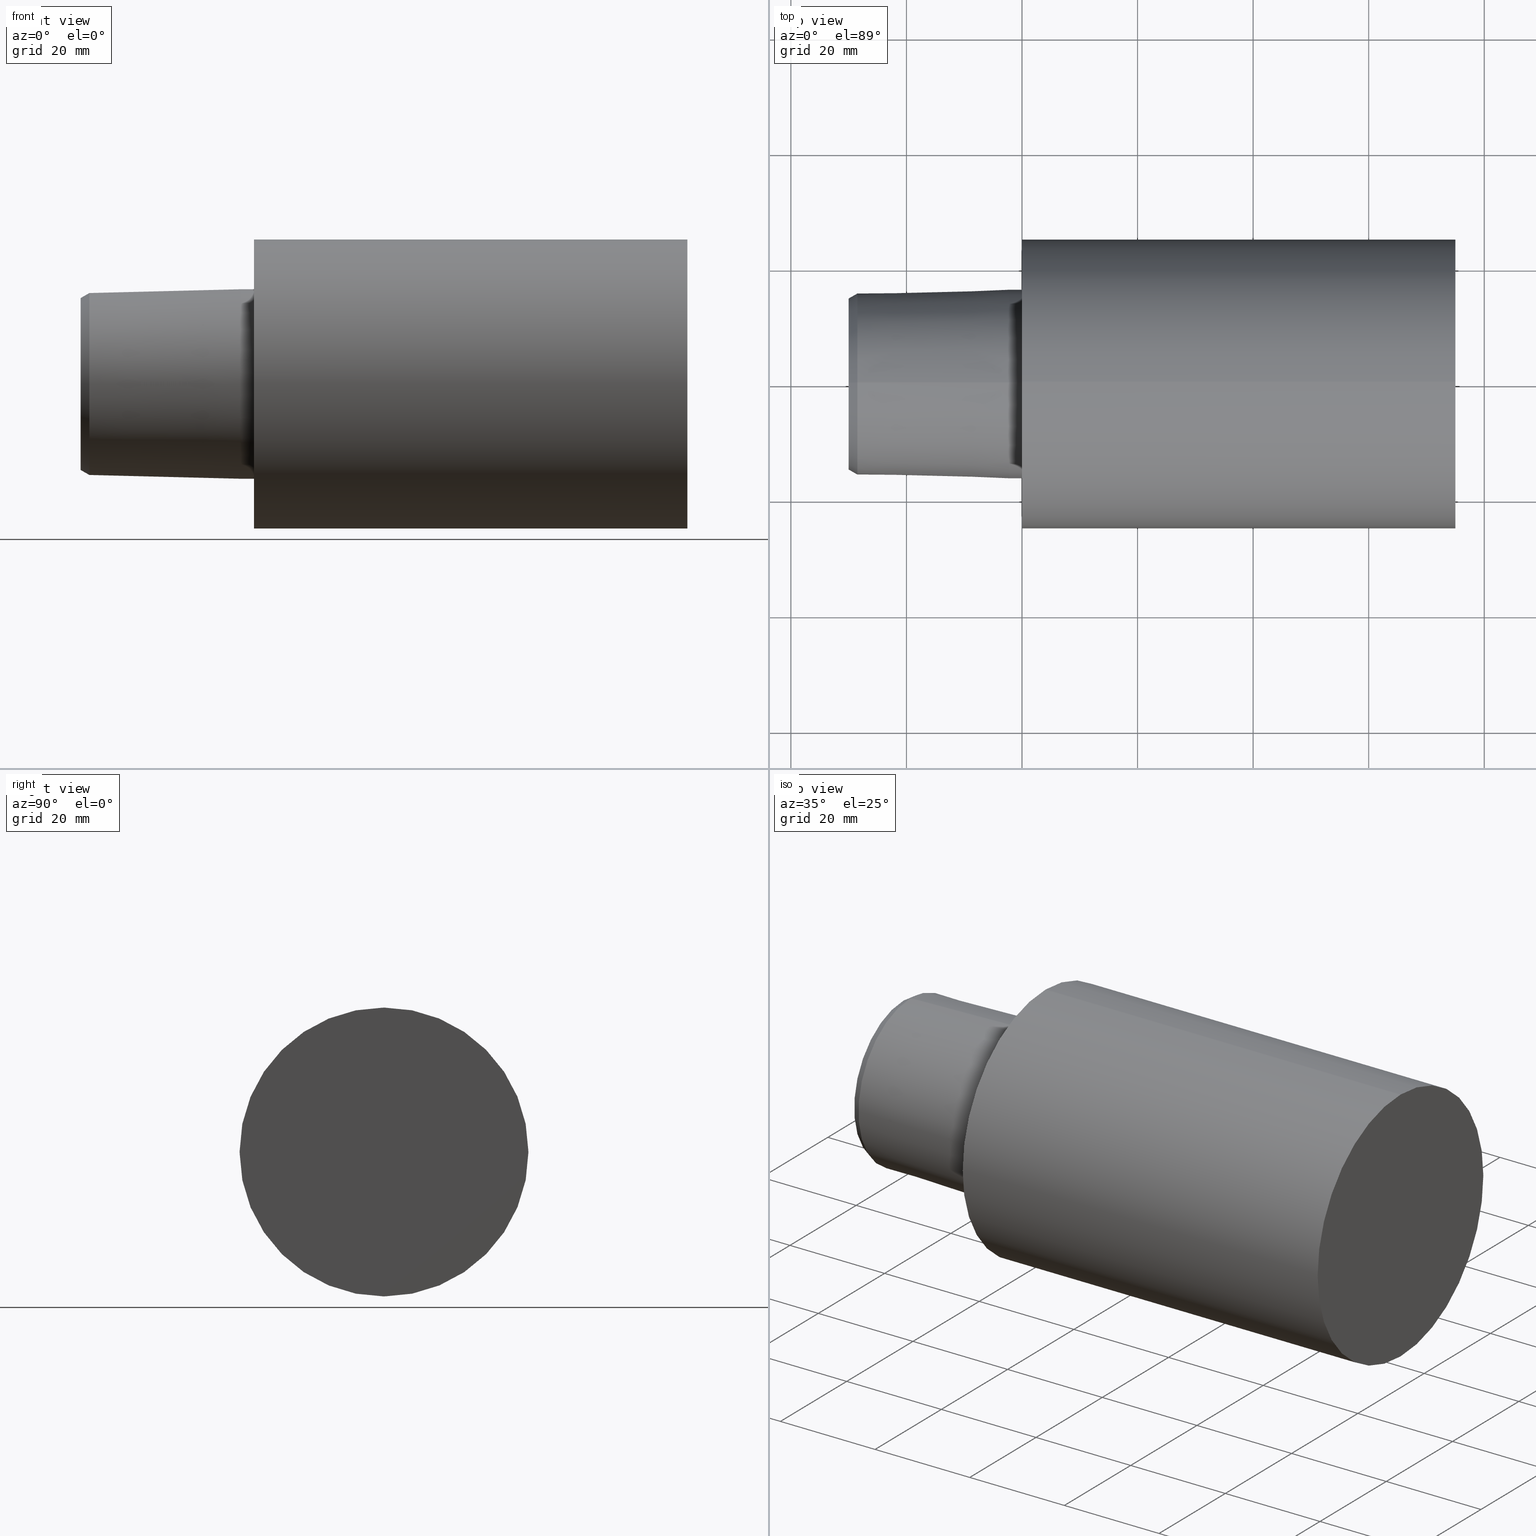
[diagram: canonical four-view strip — front | top / right | iso, engineering-drawing reading convention]
A machine part, canonical four-view strip (front | top / right | iso — engineering-drawing reading convention). The complete STEP part file that produces these views, byte-faithful:
ISO-10303-21;
HEADER;
FILE_DESCRIPTION (( 'STEP AP203' ),
    '1' );
FILE_NAME ('C5-S50-75.stp',
    '2022-03-11T15:29:42',
    ( '' ),
    ( '' ),
    'SwSTEP 2.0',
    'SolidWorks 2021',
    '' );
FILE_SCHEMA (( 'CONFIG_CONTROL_DESIGN' ));
ENDSEC;

DATA;
#1 = DIRECTION ( 'NONE',  ( 1.000000000000000000, 0.000000000000000000, 0.000000000000000000 ) ) ;
#2 = CC_DESIGN_DATE_AND_TIME_ASSIGNMENT ( #61, #10, ( #323 ) ) ;
#3 = PLANE ( 'NONE',  #201 ) ;
#4 = CARTESIAN_POINT ( 'NONE',  ( -28.49999997092999848, 0.000000000000000000, -15.74244386394270734 ) ) ;
#5 = EDGE_CURVE ( 'NONE', #42, #72, #73, .T. ) ;
#6 = ORIENTED_EDGE ( 'NONE', *, *, #352, .T. ) ;
#7 = DIRECTION ( 'NONE',  ( 1.000000000000000000, 0.000000000000000000, 0.000000000000000000 ) ) ;
#8 = AXIS2_PLACEMENT_3D ( 'NONE', #297, #261, #127 ) ;
#9 = ORIENTED_EDGE ( 'NONE', *, *, #333, .F. ) ;
#10 = DATE_TIME_ROLE ( 'creation_date' ) ;
#11 = EDGE_CURVE ( 'NONE', #220, #199, #114, .T. ) ;
#12 = ORIENTED_EDGE ( 'NONE', *, *, #53, .F. ) ;
#13 = CALENDAR_DATE ( 2022, 11, 3 ) ;
#14 = ORIENTED_EDGE ( 'NONE', *, *, #157, .F. ) ;
#15 = APPROVAL_ROLE ( '' ) ;
#16 = EDGE_LOOP ( 'NONE', ( #37, #183 ) ) ;
#17 = AXIS2_PLACEMENT_3D ( 'NONE', #57, #248, #218 ) ;
#18 = PLANE ( 'NONE',  #273 ) ;
#19 = EDGE_CURVE ( 'NONE', #42, #262, #158, .T. ) ;
#20 = ORIENTED_EDGE ( 'NONE', *, *, #135, .T. ) ;
#21 = FACE_BOUND ( 'NONE', #174, .T. ) ;
#22 = DIRECTION ( 'NONE',  ( 0.000000000000000000, 0.000000000000000000, -1.000000000000000000 ) ) ;
#23 = ADVANCED_FACE ( 'NONE', ( #134 ), #140, .T. ) ;
#24 = DIRECTION ( 'NONE',  ( 0.8660254037844387076, 0.000000000000000000, -0.4999999999999998890 ) ) ;
#25 = DIRECTION ( 'NONE',  ( 0.000000000000000000, 0.000000000000000000, -1.000000000000000000 ) ) ;
#26 = AXIS2_PLACEMENT_3D ( 'NONE', #46, #207, #291 ) ;
#27 = CARTESIAN_POINT ( 'NONE',  ( 74.99999992349999900, 0.000000000000000000, -24.99999997449999967 ) ) ;
#28 = DIRECTION ( 'NONE',  ( 1.000000000000000000, 0.000000000000000000, 0.000000000000000000 ) ) ;
#29 = DIRECTION ( 'NONE',  ( 1.000000000000000000, 0.000000000000000000, 0.000000000000000000 ) ) ;
#30 = VECTOR ( 'NONE', #129, 1000.000000000000000 ) ;
#31 = DIRECTION ( 'NONE',  ( 0.000000000000000000, 0.000000000000000000, -1.000000000000000000 ) ) ;
#32 = ADVANCED_FACE ( 'NONE', ( #265 ), #18, .T. ) ;
#33 = COORDINATED_UNIVERSAL_TIME_OFFSET ( 6, 0, .BEHIND. ) ;
#34 = VERTEX_POINT ( 'NONE', #353 ) ;
#35 = APPROVAL_DATE_TIME ( #60, #189 ) ;
#36 = AXIS2_PLACEMENT_3D ( 'NONE', #165, #244, #112 ) ;
#37 = ORIENTED_EDGE ( 'NONE', *, *, #254, .F. ) ;
#38 =( NAMED_UNIT ( * ) PLANE_ANGLE_UNIT ( ) SI_UNIT ( $, .RADIAN. ) );
#39 = APPROVAL ( #123, 'UNSPECIFIED' ) ;
#40 = EDGE_LOOP ( 'NONE', ( #96, #102, #154, #326 ) ) ;
#41 = PERSON_AND_ORGANIZATION ( #173, #115 ) ;
#42 = VERTEX_POINT ( 'NONE', #264 ) ;
#43 = CIRCLE ( 'NONE', #246, 24.99999997449999967 ) ;
#44 = AXIS2_PLACEMENT_3D ( 'NONE', #205, #347, #22 ) ;
#45 = DIRECTION ( 'NONE',  ( -1.000000000000000000, 0.000000000000000000, 0.000000000000000000 ) ) ;
#46 = CARTESIAN_POINT ( 'NONE',  ( -29.99999996776130118, 0.000000000000000000, 0.000000000000000000 ) ) ;
#47 = CC_DESIGN_DATE_AND_TIME_ASSIGNMENT ( #236, #101, ( #260 ) ) ;
#48 = DIRECTION ( 'NONE',  ( 0.000000000000000000, 0.000000000000000000, -1.000000000000000000 ) ) ;
#49 = CIRCLE ( 'NONE', #95, 15.74244386394270734 ) ;
#50 = DIRECTION ( 'NONE',  ( 0.000000000000000000, 0.000000000000000000, -1.000000000000000000 ) ) ;
#51 = DIRECTION ( 'NONE',  ( 1.000000000000000000, 0.000000000000000000, 0.000000000000000000 ) ) ;
#52 = CARTESIAN_POINT ( 'NONE',  ( -2.199937517756067606, 0.000000000000000000, 0.000000000000000000 ) ) ;
#53 = EDGE_CURVE ( 'NONE', #72, #287, #128, .T. ) ;
#54 = VECTOR ( 'NONE', #28, 1000.000000000000000 ) ;
#55 = LOCAL_TIME ( 9, 29, 42.00000000000000000, #232 ) ;
#56 = DIRECTION ( 'NONE',  ( 0.000000000000000000, 0.000000000000000000, -1.000000000000000000 ) ) ;
#57 = CARTESIAN_POINT ( 'NONE',  ( 0.000000000000000000, 0.000000000000000000, 0.000000000000000000 ) ) ;
#58 = DIRECTION ( 'NONE',  ( 1.000000000000000000, 0.000000000000000000, 0.000000000000000000 ) ) ;
#59 = ADVANCED_FACE ( 'NONE', ( #21, #293 ), #185, .T. ) ;
#60 = DATE_AND_TIME ( #13, #337 ) ;
#61 = DATE_AND_TIME ( #253, #131 ) ;
#62 =( LENGTH_UNIT ( ) NAMED_UNIT ( * ) SI_UNIT ( .MILLI., .METRE. ) );
#63 = ORIENTED_EDGE ( 'NONE', *, *, #258, .T. ) ;
#64 = PERSON_AND_ORGANIZATION_ROLE ( 'design_supplier' ) ;
#65 = AXIS2_PLACEMENT_3D ( 'NONE', #52, #271, #56 ) ;
#66 = ORIENTED_EDGE ( 'NONE', *, *, #328, .T. ) ;
#67 = PRODUCT ( 'C5-S50-75', 'C5-S50-75', '', ( #279 ) ) ;
#68 = APPROVAL_DATE_TIME ( #219, #39 ) ;
#69 = ORIENTED_EDGE ( 'NONE', *, *, #206, .F. ) ;
#70 = EDGE_CURVE ( 'NONE', #310, #34, #175, .T. ) ;
#71 = ORIENTED_EDGE ( 'NONE', *, *, #157, .T. ) ;
#72 = VERTEX_POINT ( 'NONE', #181 ) ;
#73 = CIRCLE ( 'NONE', #26, 14.87641846198772733 ) ;
#74 = SHAPE_DEFINITION_REPRESENTATION ( #294, #133 ) ;
#75 = CARTESIAN_POINT ( 'NONE',  ( 0.000000000000000000, 24.99999997449999967, 0.000000000000000000 ) ) ;
#76 = DIRECTION ( 'NONE',  ( 1.000000000000000000, 0.000000000000000000, 0.000000000000000000 ) ) ;
#77 = CARTESIAN_POINT ( 'NONE',  ( 74.99999992349999900, 0.000000000000000000, 0.000000000000000000 ) ) ;
#78 = UNCERTAINTY_MEASURE_WITH_UNIT (LENGTH_MEASURE( 1.000000000000000082E-05 ), #62, 'distance_accuracy_value', 'NONE');
#79 = DIRECTION ( 'NONE',  ( -1.000000000000000000, 0.000000000000000000, 0.000000000000000000 ) ) ;
#80 = LINE ( 'NONE', #299, #188 ) ;
#81 = CYLINDRICAL_SURFACE ( 'NONE', #235, 16.40000330327199762 ) ;
#82 = AXIS2_PLACEMENT_3D ( 'NONE', #75, #45, #319 ) ;
#83 = DIRECTION ( 'NONE',  ( 1.000000000000000000, 0.000000000000000000, 0.000000000000000000 ) ) ;
#84 = EDGE_CURVE ( 'NONE', #152, #147, #240, .T. ) ;
#85 = DIRECTION ( 'NONE',  ( 1.000000000000000000, 0.000000000000000000, 0.000000000000000000 ) ) ;
#86 = CARTESIAN_POINT ( 'NONE',  ( 74.99999992349999900, 0.000000000000000000, 0.000000000000000000 ) ) ;
#87 = CIRCLE ( 'NONE', #327, 15.74244386394270734 ) ;
#88 = APPLICATION_PROTOCOL_DEFINITION ( 'international standard', 'config_control_design', 1994, #148 ) ;
#89 = ORIENTED_EDGE ( 'NONE', *, *, #113, .F. ) ;
#90 = PERSON_AND_ORGANIZATION_ROLE ( 'design_owner' ) ;
#91 = ADVANCED_FACE ( 'NONE', ( #350 ), #324, .T. ) ;
#92 = PERSON_AND_ORGANIZATION ( #173, #115 ) ;
#93 = ORIENTED_EDGE ( 'NONE', *, *, #11, .F. ) ;
#94 = CARTESIAN_POINT ( 'NONE',  ( 74.99999992349999900, 0.000000000000000000, 0.000000000000000000 ) ) ;
#95 = AXIS2_PLACEMENT_3D ( 'NONE', #124, #7, #198 ) ;
#96 = ORIENTED_EDGE ( 'NONE', *, *, #84, .F. ) ;
#97 = PRODUCT_DEFINITION_FORMATION_WITH_SPECIFIED_SOURCE ( 'ANY', '', #67, .NOT_KNOWN. ) ;
#98 = ADVANCED_FACE ( 'NONE', ( #132 ), #242, .T. ) ;
#99 = APPROVAL_STATUS ( 'not_yet_approved' ) ;
#100 = EDGE_LOOP ( 'NONE', ( #118, #6, #336, #89 ) ) ;
#101 = DATE_TIME_ROLE ( 'classification_date' ) ;
#102 = ORIENTED_EDGE ( 'NONE', *, *, #113, .T. ) ;
#103 = ORIENTED_EDGE ( 'NONE', *, *, #311, .T. ) ;
#104 = AXIS2_PLACEMENT_3D ( 'NONE', #245, #110, #212 ) ;
#105 = CC_DESIGN_APPROVAL ( #217, ( #260 ) ) ;
#106 = EDGE_LOOP ( 'NONE', ( #280, #225 ) ) ;
#107 = DIRECTION ( 'NONE',  ( 0.000000000000000000, 0.000000000000000000, -1.000000000000000000 ) ) ;
#108 = EDGE_LOOP ( 'NONE', ( #318, #237, #341, #12 ) ) ;
#109 = AXIS2_PLACEMENT_3D ( 'NONE', #77, #76, #48 ) ;
#110 = DIRECTION ( 'NONE',  ( 1.000000000000000000, 0.000000000000000000, 0.000000000000000000 ) ) ;
#111 = CARTESIAN_POINT ( 'NONE',  ( 74.99999992349999900, 0.000000000000000000, -24.99999997449999967 ) ) ;
#112 = DIRECTION ( 'NONE',  ( 0.000000000000000000, 0.000000000000000000, -1.000000000000000000 ) ) ;
#113 = EDGE_CURVE ( 'NONE', #152, #156, #221, .T. ) ;
#114 = CIRCLE ( 'NONE', #109, 24.99999997449999967 ) ;
#115 = ORGANIZATION ( 'UNSPECIFIED', 'UNSPECIFIED', '' ) ;
#116 = DIRECTION ( 'NONE',  ( 1.000000000000000000, 0.000000000000000000, 0.000000000000000000 ) ) ;
#117 = DIRECTION ( 'NONE',  ( 0.000000000000000000, 0.000000000000000000, -1.000000000000000000 ) ) ;
#118 = ORIENTED_EDGE ( 'NONE', *, *, #258, .F. ) ;
#119 = VECTOR ( 'NONE', #1, 1000.000000000000000 ) ;
#120 = DIRECTION ( 'NONE',  ( 0.000000000000000000, 0.000000000000000000, 1.000000000000000000 ) ) ;
#121 = ADVANCED_FACE ( 'NONE', ( #345 ), #306, .T. ) ;
#122 = ORIENTED_EDGE ( 'NONE', *, *, #193, .T. ) ;
#123 = APPROVAL_STATUS ( 'not_yet_approved' ) ;
#124 = CARTESIAN_POINT ( 'NONE',  ( -28.49999997092999848, 0.000000000000000000, 0.000000000000000000 ) ) ;
#125 = EDGE_LOOP ( 'NONE', ( #103, #63, #69, #9 ) ) ;
#126 = CIRCLE ( 'NONE', #259, 24.99999997449999967 ) ;
#127 = DIRECTION ( 'NONE',  ( 0.000000000000000000, 0.000000000000000000, -1.000000000000000000 ) ) ;
#128 = LINE ( 'NONE', #200, #153 ) ;
#129 = DIRECTION ( 'NONE',  ( 1.000000000000000000, 0.000000000000000000, 0.000000000000000000 ) ) ;
#130 = VECTOR ( 'NONE', #184, 1000.000000000000000 ) ;
#131 = LOCAL_TIME ( 9, 29, 42.00000000000000000, #249 ) ;
#132 = FACE_OUTER_BOUND ( 'NONE', #108, .T. ) ;
#133 = ADVANCED_BREP_SHAPE_REPRESENTATION ( 'C5-S50-75', ( #321, #348 ), #145 ) ;
#134 = FACE_OUTER_BOUND ( 'NONE', #125, .T. ) ;
#135 = EDGE_CURVE ( 'NONE', #34, #310, #43, .T. ) ;
#136 = LINE ( 'NONE', #270, #320 ) ;
#137 = CARTESIAN_POINT ( 'NONE',  ( -2.199937517756067606, 0.000000000000000000, 0.000000000000000000 ) ) ;
#138 = CARTESIAN_POINT ( 'NONE',  ( -28.49999997092999848, 1.927893348873434490E-15, 15.74244386394270734 ) ) ;
#139 = DIRECTION ( 'NONE',  ( 0.000000000000000000, 0.000000000000000000, -1.000000000000000000 ) ) ;
#140 = CONICAL_SURFACE ( 'NONE', #44, 16.40000330327199762, 0.02499699292341668252 ) ;
#141 = DIRECTION ( 'NONE',  ( 0.9996875914402667540, 3.060929943787498310E-18, 0.02499438977767824352 ) ) ;
#142 = DIRECTION ( 'NONE',  ( 1.000000000000000000, 0.000000000000000000, 0.000000000000000000 ) ) ;
#143 = CARTESIAN_POINT ( 'NONE',  ( 0.000000000000000000, 0.000000000000000000, 0.000000000000000000 ) ) ;
#144 = CIRCLE ( 'NONE', #252, 16.40000330327199762 ) ;
#145 =( GEOMETRIC_REPRESENTATION_CONTEXT ( 3 ) GLOBAL_UNCERTAINTY_ASSIGNED_CONTEXT ( ( #78 ) ) GLOBAL_UNIT_ASSIGNED_CONTEXT ( ( #62, #38, #226 ) ) REPRESENTATION_CONTEXT ( 'NONE', 'WORKASPACE' ) );
#146 = PERSON_AND_ORGANIZATION_ROLE ( 'creator' ) ;
#147 = VERTEX_POINT ( 'NONE', #186 ) ;
#148 = APPLICATION_CONTEXT ( 'configuration controlled 3d designs of mechanical parts and assemblies' ) ;
#149 = DIRECTION ( 'NONE',  ( 0.000000000000000000, 0.000000000000000000, -1.000000000000000000 ) ) ;
#150 = EDGE_CURVE ( 'NONE', #199, #220, #126, .T. ) ;
#151 = SECURITY_CLASSIFICATION_LEVEL ( 'unclassified' ) ;
#152 = VERTEX_POINT ( 'NONE', #164 ) ;
#153 = VECTOR ( 'NONE', #24, 1000.000000000000000 ) ;
#154 = ORIENTED_EDGE ( 'NONE', *, *, #163, .T. ) ;
#155 = APPLICATION_CONTEXT ( 'configuration controlled 3d designs of mechanical parts and assemblies' ) ;
#156 = VERTEX_POINT ( 'NONE', #354 ) ;
#157 = EDGE_CURVE ( 'NONE', #34, #220, #355, .T. ) ;
#158 = LINE ( 'NONE', #204, #130 ) ;
#159 = CARTESIAN_POINT ( 'NONE',  ( 74.99999992349999900, 2.008421155135807723E-15, 16.40000330327199762 ) ) ;
#160 = CIRCLE ( 'NONE', #17, 16.40000330327199762 ) ;
#161 = CARTESIAN_POINT ( 'NONE',  ( 74.99999992349999900, 0.000000000000000000, 0.000000000000000000 ) ) ;
#162 = DESIGN_CONTEXT ( 'detailed design', #148, 'design' ) ;
#163 = EDGE_CURVE ( 'NONE', #156, #176, #136, .T. ) ;
#164 = CARTESIAN_POINT ( 'NONE',  ( -2.199937517756067606, 2.008421155135807723E-15, 16.40000330327199762 ) ) ;
#165 = CARTESIAN_POINT ( 'NONE',  ( -28.49999997092999848, 0.000000000000000000, 0.000000000000000000 ) ) ;
#166 = LINE ( 'NONE', #330, #54 ) ;
#167 = ADVANCED_FACE ( 'NONE', ( #241 ), #307, .T. ) ;
#168 = DIRECTION ( 'NONE',  ( 1.000000000000000000, 0.000000000000000000, 0.000000000000000000 ) ) ;
#169 = CARTESIAN_POINT ( 'NONE',  ( 74.99999992349999900, 3.061616994745535943E-15, 24.99999997449999967 ) ) ;
#170 = CONICAL_SURFACE ( 'NONE', #36, 15.74244386394270734, 0.5235987755982987046 ) ;
#171 = ADVANCED_FACE ( 'NONE', ( #332 ), #3, .T. ) ;
#172 = PERSON_AND_ORGANIZATION ( #173, #115 ) ;
#173 = PERSON ( 'UNSPECIFIED', 'UNSPECIFIED', 'UNSPECIFIED', ('UNSPECIFIED'), ('UNSPECIFIED'), ('UNSPECIFIED') ) ;
#174 = EDGE_LOOP ( 'NONE', ( #230, #66 ) ) ;
#175 = CIRCLE ( 'NONE', #342, 24.99999997449999967 ) ;
#176 = VERTEX_POINT ( 'NONE', #267 ) ;
#177 = ORIENTED_EDGE ( 'NONE', *, *, #19, .F. ) ;
#178 = AXIS2_PLACEMENT_3D ( 'NONE', #190, #272, #139 ) ;
#179 = CC_DESIGN_SECURITY_CLASSIFICATION ( #260, ( #97 ) ) ;
#180 = DIRECTION ( 'NONE',  ( 1.000000000000000000, 0.000000000000000000, 0.000000000000000000 ) ) ;
#181 = CARTESIAN_POINT ( 'NONE',  ( -29.99999996776130118, 0.000000000000000000, -14.87641846198772733 ) ) ;
#182 = APPROVAL_STATUS ( 'not_yet_approved' ) ;
#183 = ORIENTED_EDGE ( 'NONE', *, *, #5, .F. ) ;
#184 = DIRECTION ( 'NONE',  ( 0.8660254037844387076, 6.123233995736748780E-17, 0.4999999999999998890 ) ) ;
#185 = PLANE ( 'NONE',  #82 ) ;
#186 = CARTESIAN_POINT ( 'NONE',  ( 0.000000000000000000, 2.008421155135807723E-15, 16.40000330327199762 ) ) ;
#187 = DIRECTION ( 'NONE',  ( 0.000000000000000000, 0.000000000000000000, -1.000000000000000000 ) ) ;
#188 = VECTOR ( 'NONE', #141, 999.9999999999998863 ) ;
#189 = APPROVAL ( #99, 'UNSPECIFIED' ) ;
#190 = CARTESIAN_POINT ( 'NONE',  ( -29.99999996776130118, 0.000000000000000000, 0.000000000000000000 ) ) ;
#191 = DIRECTION ( 'NONE',  ( 0.000000000000000000, 1.000000000000000000, 0.000000000000000000 ) ) ;
#192 = CARTESIAN_POINT ( 'NONE',  ( 74.99999992349999900, 24.99999997449999967, 0.000000000000000000 ) ) ;
#193 = EDGE_CURVE ( 'NONE', #310, #199, #166, .T. ) ;
#194 = EDGE_LOOP ( 'NONE', ( #20, #122, #93, #14 ) ) ;
#195 = LINE ( 'NONE', #275, #209 ) ;
#196 = ORIENTED_EDGE ( 'NONE', *, *, #150, .T. ) ;
#197 = AXIS2_PLACEMENT_3D ( 'NONE', #94, #142, #149 ) ;
#198 = DIRECTION ( 'NONE',  ( 0.000000000000000000, 0.000000000000000000, -1.000000000000000000 ) ) ;
#199 = VERTEX_POINT ( 'NONE', #169 ) ;
#200 = CARTESIAN_POINT ( 'NONE',  ( -28.49999997092999848, 0.000000000000000000, -15.74244386394270734 ) ) ;
#201 = AXIS2_PLACEMENT_3D ( 'NONE', #192, #83, #191 ) ;
#202 = APPROVAL_ROLE ( '' ) ;
#203 = APPROVAL_PERSON_ORGANIZATION ( #340, #39, #276 ) ;
#204 = CARTESIAN_POINT ( 'NONE',  ( -28.49999997092999848, 1.927893348873434490E-15, 15.74244386394270734 ) ) ;
#205 = CARTESIAN_POINT ( 'NONE',  ( -2.199937517756067606, 0.000000000000000000, 0.000000000000000000 ) ) ;
#206 = EDGE_CURVE ( 'NONE', #156, #152, #144, .T. ) ;
#207 = DIRECTION ( 'NONE',  ( 1.000000000000000000, 0.000000000000000000, 0.000000000000000000 ) ) ;
#208 = DIRECTION ( 'NONE',  ( 0.000000000000000000, 0.000000000000000000, 1.000000000000000000 ) ) ;
#209 = VECTOR ( 'NONE', #284, 999.9999999999998863 ) ;
#210 = LOCAL_TIME ( 9, 29, 42.00000000000000000, #33 ) ;
#211 = DIRECTION ( 'NONE',  ( 1.000000000000000000, 0.000000000000000000, 0.000000000000000000 ) ) ;
#212 = DIRECTION ( 'NONE',  ( 0.000000000000000000, 0.000000000000000000, -1.000000000000000000 ) ) ;
#213 = CARTESIAN_POINT ( 'NONE',  ( 0.000000000000000000, 3.061616994745535943E-15, 24.99999997449999967 ) ) ;
#214 = AXIS2_PLACEMENT_3D ( 'NONE', #334, #211, #269 ) ;
#215 = APPROVAL_PERSON_ORGANIZATION ( #309, #189, #15 ) ;
#216 = DIRECTION ( 'NONE',  ( 0.000000000000000000, 0.000000000000000000, -1.000000000000000000 ) ) ;
#217 = APPROVAL ( #182, 'UNSPECIFIED' ) ;
#218 = DIRECTION ( 'NONE',  ( 0.000000000000000000, 0.000000000000000000, -1.000000000000000000 ) ) ;
#219 = DATE_AND_TIME ( #224, #210 ) ;
#220 = VERTEX_POINT ( 'NONE', #111 ) ;
#221 = CIRCLE ( 'NONE', #8, 16.40000330327199762 ) ;
#222 = PERSON_AND_ORGANIZATION ( #173, #115 ) ;
#223 = ORIENTED_EDGE ( 'NONE', *, *, #163, .F. ) ;
#224 = CALENDAR_DATE ( 2022, 11, 3 ) ;
#225 = ORIENTED_EDGE ( 'NONE', *, *, #70, .F. ) ;
#226 =( NAMED_UNIT ( * ) SI_UNIT ( $, .STERADIAN. ) SOLID_ANGLE_UNIT ( ) );
#227 = ORIENTED_EDGE ( 'NONE', *, *, #247, .F. ) ;
#228 = CIRCLE ( 'NONE', #104, 16.40000330327199762 ) ;
#229 = DIRECTION ( 'NONE',  ( 1.000000000000000000, 0.000000000000000000, 0.000000000000000000 ) ) ;
#230 = ORIENTED_EDGE ( 'NONE', *, *, #247, .T. ) ;
#231 = PRODUCT_RELATED_PRODUCT_CATEGORY ( 'detail', '', ( #67 ) ) ;
#232 = COORDINATED_UNIVERSAL_TIME_OFFSET ( 6, 0, .BEHIND. ) ;
#233 = CARTESIAN_POINT ( 'NONE',  ( 0.000000000000000000, 0.000000000000000000, 0.000000000000000000 ) ) ;
#234 = ORIENTED_EDGE ( 'NONE', *, *, #352, .F. ) ;
#235 = AXIS2_PLACEMENT_3D ( 'NONE', #301, #116, #187 ) ;
#236 = DATE_AND_TIME ( #290, #308 ) ;
#237 = ORIENTED_EDGE ( 'NONE', *, *, #19, .T. ) ;
#238 = CARTESIAN_POINT ( 'NONE',  ( -28.49999997092999848, 0.000000000000000000, 0.000000000000000000 ) ) ;
#239 = DATE_AND_TIME ( #317, #55 ) ;
#240 = LINE ( 'NONE', #159, #30 ) ;
#241 = FACE_OUTER_BOUND ( 'NONE', #100, .T. ) ;
#242 = CONICAL_SURFACE ( 'NONE', #268, 15.74244386394270734, 0.5235987755982987046 ) ;
#243 = CARTESIAN_POINT ( 'NONE',  ( 0.000000000000000000, 0.000000000000000000, 0.000000000000000000 ) ) ;
#244 = DIRECTION ( 'NONE',  ( 1.000000000000000000, 0.000000000000000000, 0.000000000000000000 ) ) ;
#245 = CARTESIAN_POINT ( 'NONE',  ( 0.000000000000000000, 0.000000000000000000, 0.000000000000000000 ) ) ;
#246 = AXIS2_PLACEMENT_3D ( 'NONE', #243, #335, #25 ) ;
#247 = EDGE_CURVE ( 'NONE', #176, #147, #228, .T. ) ;
#248 = DIRECTION ( 'NONE',  ( 1.000000000000000000, 0.000000000000000000, 0.000000000000000000 ) ) ;
#249 = COORDINATED_UNIVERSAL_TIME_OFFSET ( 6, 0, .BEHIND. ) ;
#250 = CYLINDRICAL_SURFACE ( 'NONE', #197, 24.99999997449999967 ) ;
#251 = ORIENTED_EDGE ( 'NONE', *, *, #206, .T. ) ;
#252 = AXIS2_PLACEMENT_3D ( 'NONE', #137, #29, #31 ) ;
#253 = CALENDAR_DATE ( 2022, 11, 3 ) ;
#254 = EDGE_CURVE ( 'NONE', #72, #42, #300, .T. ) ;
#255 = ORIENTED_EDGE ( 'NONE', *, *, #53, .T. ) ;
#256 = COORDINATED_UNIVERSAL_TIME_OFFSET ( 6, 0, .BEHIND. ) ;
#257 = ORIENTED_EDGE ( 'NONE', *, *, #5, .T. ) ;
#258 = EDGE_CURVE ( 'NONE', #262, #152, #80, .T. ) ;
#259 = AXIS2_PLACEMENT_3D ( 'NONE', #86, #168, #216 ) ;
#260 = SECURITY_CLASSIFICATION ( '', '', #151 ) ;
#261 = DIRECTION ( 'NONE',  ( 1.000000000000000000, 0.000000000000000000, 0.000000000000000000 ) ) ;
#262 = VERTEX_POINT ( 'NONE', #138 ) ;
#263 = PERSON_AND_ORGANIZATION ( #173, #115 ) ;
#264 = CARTESIAN_POINT ( 'NONE',  ( -29.99999996776130118, 1.874864587049208810E-15, 14.87641846198772733 ) ) ;
#265 = FACE_OUTER_BOUND ( 'NONE', #16, .T. ) ;
#266 = DIRECTION ( 'NONE',  ( 0.000000000000000000, 0.000000000000000000, -1.000000000000000000 ) ) ;
#267 = CARTESIAN_POINT ( 'NONE',  ( 0.000000000000000000, 0.000000000000000000, -16.40000330327199762 ) ) ;
#268 = AXIS2_PLACEMENT_3D ( 'NONE', #238, #351, #107 ) ;
#269 = DIRECTION ( 'NONE',  ( 0.000000000000000000, 0.000000000000000000, -1.000000000000000000 ) ) ;
#270 = CARTESIAN_POINT ( 'NONE',  ( 74.99999992349999900, 0.000000000000000000, -16.40000330327199762 ) ) ;
#271 = DIRECTION ( 'NONE',  ( 1.000000000000000000, 0.000000000000000000, 0.000000000000000000 ) ) ;
#272 = DIRECTION ( 'NONE',  ( 1.000000000000000000, 0.000000000000000000, 0.000000000000000000 ) ) ;
#273 = AXIS2_PLACEMENT_3D ( 'NONE', #322, #79, #208 ) ;
#274 = CC_DESIGN_APPROVAL ( #189, ( #323 ) ) ;
#275 = CARTESIAN_POINT ( 'NONE',  ( -2.199937517756067606, 0.000000000000000000, -16.40000330327199762 ) ) ;
#276 = APPROVAL_ROLE ( '' ) ;
#277 = EDGE_LOOP ( 'NONE', ( #251, #314, #227, #223 ) ) ;
#278 = ADVANCED_FACE ( 'NONE', ( #305 ), #170, .T. ) ;
#279 = MECHANICAL_CONTEXT ( 'NONE', #155, 'mechanical' ) ;
#280 = ORIENTED_EDGE ( 'NONE', *, *, #135, .F. ) ;
#281 = CLOSED_SHELL ( 'NONE', ( #171, #346, #59, #121, #167, #278, #32, #98, #23, #298, #91 ) ) ;
#282 = APPLICATION_PROTOCOL_DEFINITION ( 'international standard', 'config_control_design', 1994, #155 ) ;
#283 = EDGE_LOOP ( 'NONE', ( #289, #196 ) ) ;
#284 = DIRECTION ( 'NONE',  ( 0.9996875914402667540, 0.000000000000000000, -0.02499438977767824352 ) ) ;
#285 = CC_DESIGN_PERSON_AND_ORGANIZATION_ASSIGNMENT ( #222, #90, ( #67 ) ) ;
#286 = EDGE_LOOP ( 'NONE', ( #177, #257, #255, #234 ) ) ;
#287 = VERTEX_POINT ( 'NONE', #4 ) ;
#288 = AXIS2_PLACEMENT_3D ( 'NONE', #161, #180, #266 ) ;
#289 = ORIENTED_EDGE ( 'NONE', *, *, #11, .T. ) ;
#290 = CALENDAR_DATE ( 2022, 11, 3 ) ;
#291 = DIRECTION ( 'NONE',  ( 0.000000000000000000, 0.000000000000000000, -1.000000000000000000 ) ) ;
#292 = CC_DESIGN_PERSON_AND_ORGANIZATION_ASSIGNMENT ( #92, #313, ( #97 ) ) ;
#293 = FACE_OUTER_BOUND ( 'NONE', #106, .T. ) ;
#294 = PRODUCT_DEFINITION_SHAPE ( 'NONE', 'NONE',  #323 ) ;
#295 = APPROVAL_PERSON_ORGANIZATION ( #263, #217, #202 ) ;
#296 = ORIENTED_EDGE ( 'NONE', *, *, #150, .F. ) ;
#297 = CARTESIAN_POINT ( 'NONE',  ( -2.199937517756067606, 0.000000000000000000, 0.000000000000000000 ) ) ;
#298 = ADVANCED_FACE ( 'NONE', ( #331 ), #81, .T. ) ;
#299 = CARTESIAN_POINT ( 'NONE',  ( -2.199937517756067606, 2.008421155135807723E-15, 16.40000330327199762 ) ) ;
#300 = CIRCLE ( 'NONE', #178, 14.87641846198772733 ) ;
#301 = CARTESIAN_POINT ( 'NONE',  ( 74.99999992349999900, 0.000000000000000000, 0.000000000000000000 ) ) ;
#302 = CC_DESIGN_APPROVAL ( #39, ( #97 ) ) ;
#303 = CC_DESIGN_PERSON_AND_ORGANIZATION_ASSIGNMENT ( #343, #344, ( #260 ) ) ;
#304 = CARTESIAN_POINT ( 'NONE',  ( -28.49999997092999848, 0.000000000000000000, 0.000000000000000000 ) ) ;
#305 = FACE_OUTER_BOUND ( 'NONE', #286, .T. ) ;
#306 = CYLINDRICAL_SURFACE ( 'NONE', #214, 16.40000330327199762 ) ;
#307 = CONICAL_SURFACE ( 'NONE', #65, 16.40000330327199762, 0.02499699292341668252 ) ;
#308 = LOCAL_TIME ( 9, 29, 42.00000000000000000, #325 ) ;
#309 = PERSON_AND_ORGANIZATION ( #173, #115 ) ;
#310 = VERTEX_POINT ( 'NONE', #213 ) ;
#311 = EDGE_CURVE ( 'NONE', #287, #262, #87, .T. ) ;
#312 = FACE_OUTER_BOUND ( 'NONE', #316, .T. ) ;
#313 = PERSON_AND_ORGANIZATION_ROLE ( 'creator' ) ;
#314 = ORIENTED_EDGE ( 'NONE', *, *, #84, .T. ) ;
#315 = CC_DESIGN_PERSON_AND_ORGANIZATION_ASSIGNMENT ( #41, #64, ( #97 ) ) ;
#316 = EDGE_LOOP ( 'NONE', ( #338, #329, #71, #296 ) ) ;
#317 = CALENDAR_DATE ( 2022, 11, 3 ) ;
#318 = ORIENTED_EDGE ( 'NONE', *, *, #254, .T. ) ;
#319 = DIRECTION ( 'NONE',  ( 0.000000000000000000, 0.000000000000000000, 1.000000000000000000 ) ) ;
#320 = VECTOR ( 'NONE', #85, 1000.000000000000000 ) ;
#321 = MANIFOLD_SOLID_BREP ( 'Scale1', #281 ) ;
#322 = CARTESIAN_POINT ( 'NONE',  ( -29.99999996776130118, 0.000000000000000000, 0.000000000000000000 ) ) ;
#323 = PRODUCT_DEFINITION ( 'UNKNOWN', '', #97, #162 ) ;
#324 = CYLINDRICAL_SURFACE ( 'NONE', #288, 24.99999997449999967 ) ;
#325 = COORDINATED_UNIVERSAL_TIME_OFFSET ( 6, 0, .BEHIND. ) ;
#326 = ORIENTED_EDGE ( 'NONE', *, *, #328, .F. ) ;
#327 = AXIS2_PLACEMENT_3D ( 'NONE', #304, #58, #117 ) ;
#328 = EDGE_CURVE ( 'NONE', #147, #176, #160, .T. ) ;
#329 = ORIENTED_EDGE ( 'NONE', *, *, #70, .T. ) ;
#330 = CARTESIAN_POINT ( 'NONE',  ( 74.99999992349999900, 3.061616994745535943E-15, 24.99999997449999967 ) ) ;
#331 = FACE_OUTER_BOUND ( 'NONE', #277, .T. ) ;
#332 = FACE_OUTER_BOUND ( 'NONE', #283, .T. ) ;
#333 = EDGE_CURVE ( 'NONE', #287, #156, #195, .T. ) ;
#334 = CARTESIAN_POINT ( 'NONE',  ( 74.99999992349999900, 0.000000000000000000, 0.000000000000000000 ) ) ;
#335 = DIRECTION ( 'NONE',  ( 1.000000000000000000, 0.000000000000000000, 0.000000000000000000 ) ) ;
#336 = ORIENTED_EDGE ( 'NONE', *, *, #333, .T. ) ;
#337 = LOCAL_TIME ( 9, 29, 42.00000000000000000, #256 ) ;
#338 = ORIENTED_EDGE ( 'NONE', *, *, #193, .F. ) ;
#339 = CC_DESIGN_PERSON_AND_ORGANIZATION_ASSIGNMENT ( #172, #146, ( #323 ) ) ;
#340 = PERSON_AND_ORGANIZATION ( #173, #115 ) ;
#341 = ORIENTED_EDGE ( 'NONE', *, *, #311, .F. ) ;
#342 = AXIS2_PLACEMENT_3D ( 'NONE', #233, #51, #50 ) ;
#343 = PERSON_AND_ORGANIZATION ( #173, #115 ) ;
#344 = PERSON_AND_ORGANIZATION_ROLE ( 'classification_officer' ) ;
#345 = FACE_OUTER_BOUND ( 'NONE', #40, .T. ) ;
#346 = ADVANCED_FACE ( 'NONE', ( #312 ), #250, .T. ) ;
#347 = DIRECTION ( 'NONE',  ( 1.000000000000000000, 0.000000000000000000, 0.000000000000000000 ) ) ;
#348 = AXIS2_PLACEMENT_3D ( 'NONE', #143, #120, #229 ) ;
#349 = APPROVAL_DATE_TIME ( #239, #217 ) ;
#350 = FACE_OUTER_BOUND ( 'NONE', #194, .T. ) ;
#351 = DIRECTION ( 'NONE',  ( 1.000000000000000000, 0.000000000000000000, 0.000000000000000000 ) ) ;
#352 = EDGE_CURVE ( 'NONE', #262, #287, #49, .T. ) ;
#353 = CARTESIAN_POINT ( 'NONE',  ( 0.000000000000000000, 0.000000000000000000, -24.99999997449999967 ) ) ;
#354 = CARTESIAN_POINT ( 'NONE',  ( -2.199937517756067606, 0.000000000000000000, -16.40000330327199762 ) ) ;
#355 = LINE ( 'NONE', #27, #119 ) ;
ENDSEC;
END-ISO-10303-21;
